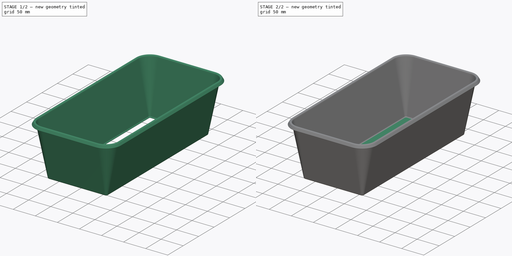
[diagram: build sequence overview — one tinted view per stage of 2, left to right]
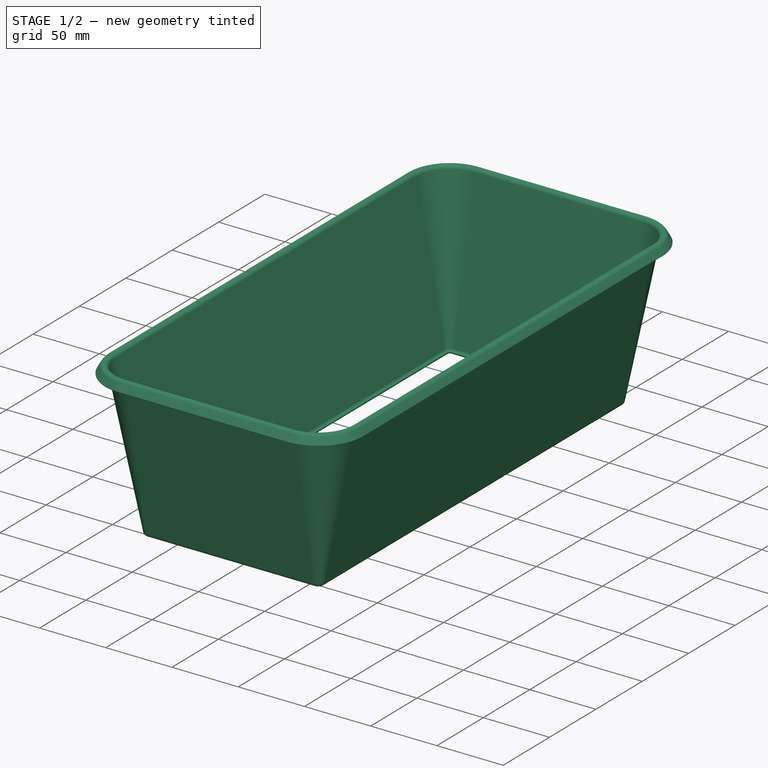
[diagram: stage 1 of 2 — iso view after this stage's code; geometry added in this stage tinted green]
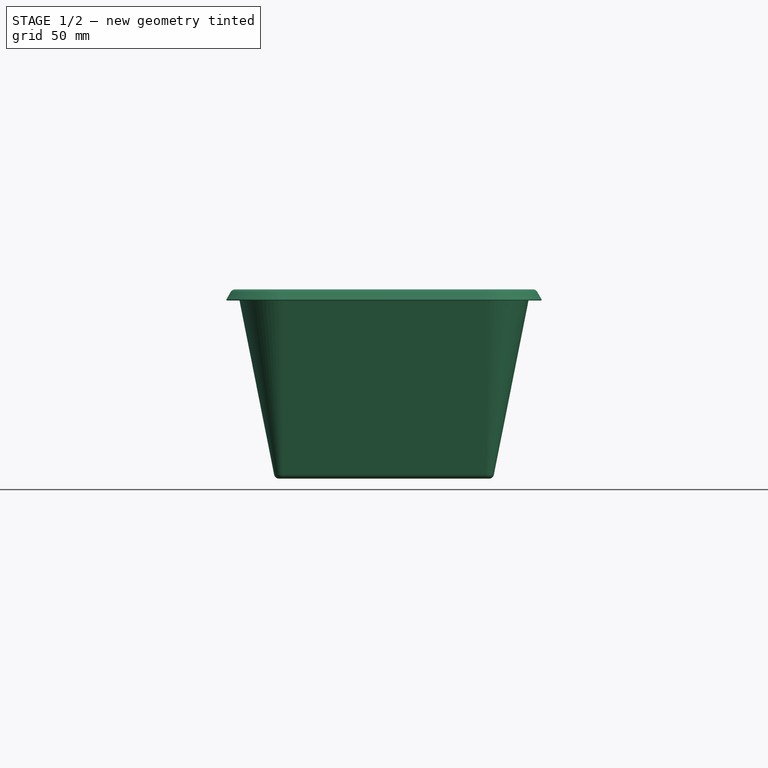
[diagram: stage 1 of 2 — front view after this stage's code; geometry added in this stage tinted green]
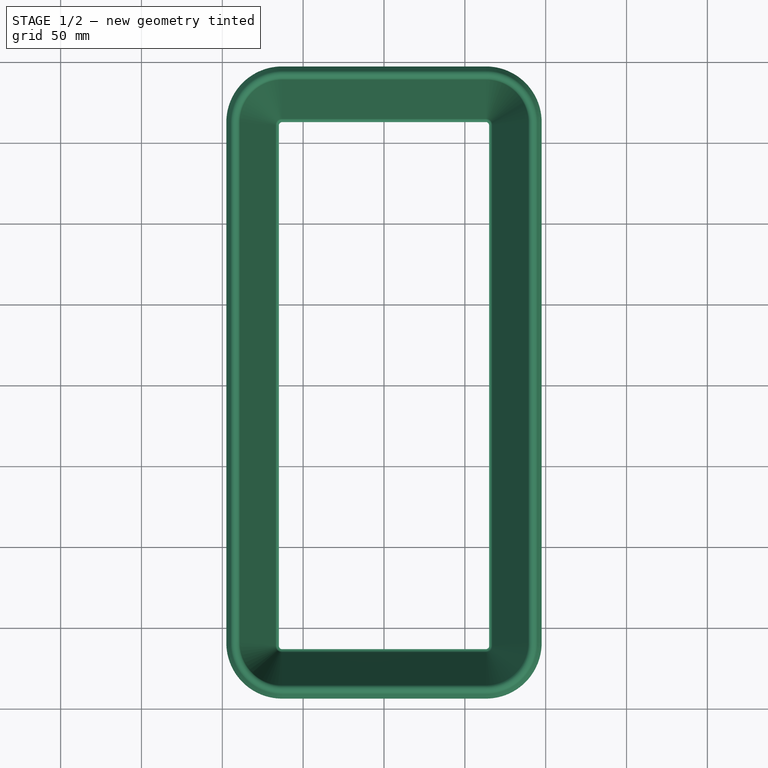
[diagram: stage 1 of 2 — top view after this stage's code; geometry added in this stage tinted green]
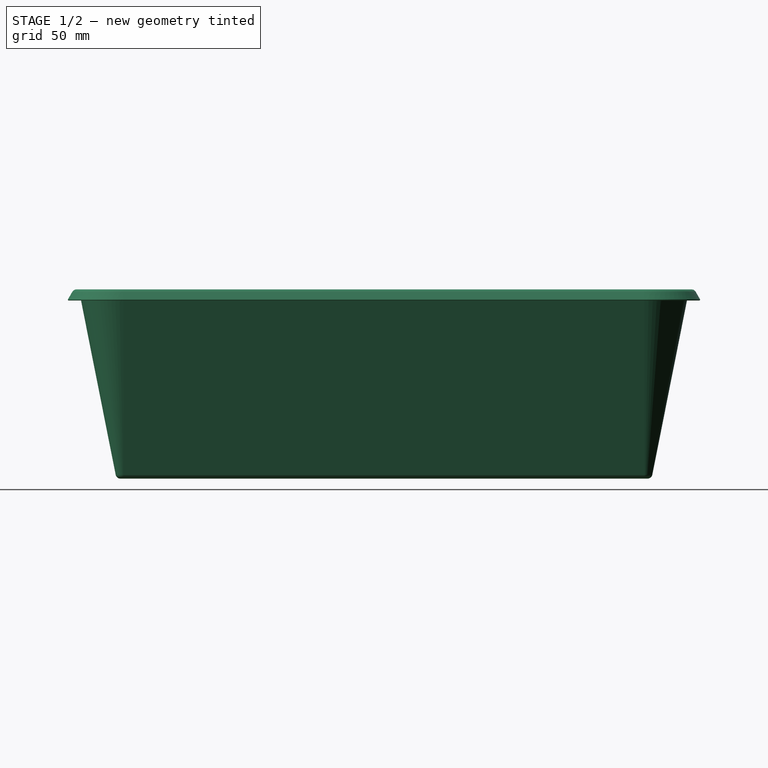
[diagram: stage 1 of 2 — right view after this stage's code; geometry added in this stage tinted green]
FCSTD DOCUMENT  (FreeCAD 0.22R37100 (Git))
Label: basin_2
License: All rights reserved
LicenseURL: http://en.wikipedia.org/wiki/All_rights_reserved
objects: Sketcher::SketchObject×2, PartDesign::AdditivePipe×1, PartDesign::Pad×1, PartDesign::CoordinateSystem×1, PartDesign::Body×1
note: 8 computed .brp shape members not serialized (recipe doc carries the construction recipe); baked Part::Feature solids carry a one-line shape summary decoded from their .brp

FEATURE [Sketcher::SketchObject] Sketch
  AttachmentOffset = pos=(65,0,0) rot=(0,0,1;0rad)
  AttachmentSupport = -> [XZ_Plane]
  FullyConstrained = true
  MapMode = 5
  Placement = pos=(65,0,0) rot=(1,0,0;1.5708rad)
  expr: .AttachmentOffset.Base.x = <<Sketch001>>.Constraints.width / 2
  sketch-geometry (15):
    g0: LineSegment StartX=2.94242 StartY=2.41503 StartZ=0 EndX=25.2037 EndY=114.39 EndZ=0
    g1: LineSegment StartX=24.2229 StartY=114.585 StartZ=0 EndX=1.96161 EndY=2.61002 EndZ=0
    g2: LineSegment StartX=-6e-16 StartY=0 StartZ=0 EndX=-4e-16 EndY=1 EndZ=0
    g3: ArcOfCircle CenterX=0 CenterY=3 CenterZ=0 NormalX=0 NormalY=0 NormalZ=1 AngleXU=0 Radius=2 StartAngle=4.71239 EndAngle=6.08694
    g4: ArcOfCircle CenterX=0 CenterY=3 CenterZ=0 NormalX=0 NormalY=0 NormalZ=1 AngleXU=0 Radius=3 StartAngle=4.71239 EndAngle=6.08694
    g5: ArcOfCircle CenterX=27.1653 CenterY=114 CenterZ=0 NormalX=0 NormalY=0 NormalZ=1 AngleXU=0 Radius=2 StartAngle=0.523599 EndAngle=2.94535
    g6: LineSegment StartX=28.8974 StartY=115 StartZ=0 EndX=31.567 EndY=110.376 EndZ=0
    g7: LineSegment StartX=29.7634 StartY=115.5 StartZ=0 EndX=32.433 EndY=110.876 EndZ=0
    g8: LineSegment StartX=0 StartY=117 StartZ=0 EndX=27.1653 EndY=117 EndZ=0
    g9: LineSegment StartX=27.1653 StartY=117 StartZ=0 EndX=27.1653 EndY=0 EndZ=0
    g10: ArcOfCircle CenterX=27.1653 CenterY=114 CenterZ=0 NormalX=0 NormalY=0 NormalZ=1 AngleXU=0 Radius=3 StartAngle=0.523599 EndAngle=1.5708
    g11: ArcOfCircle CenterX=27.1653 CenterY=114 CenterZ=0 NormalX=0 NormalY=0 NormalZ=1 AngleXU=0 Radius=3 StartAngle=1.5708 EndAngle=2.94535
    g12: LineSegment StartX=32.5 StartY=0 StartZ=0 EndX=32.5 EndY=110.626 EndZ=0
    g13: ArcOfCircle CenterX=32 CenterY=110.626 CenterZ=0 NormalX=0 NormalY=0 NormalZ=1 AngleXU=0 Radius=0.5 StartAngle=3.66519 EndAngle=6.28319
    g14: ArcOfCircle CenterX=32 CenterY=110.626 CenterZ=0 NormalX=0 NormalY=0 NormalZ=1 AngleXU=0 Radius=0.5 StartAngle=-9.8e-15 EndAngle=0.523599
  constraints (39):
    c: Coincident(g-1,g2)
    c: PointOnObject(g2,g-2)
    c: PointOnObject(g3,g-2)
    c: Coincident(g3,g2)
    c: Coincident(g4,g3)
    c: Coincident(g4,g2)
    c: Tangent(g4,g0) = -1.5708
    c: Tangent(g3,g1) = 1.5708
    c: DistanceY(g2,g2) = 1
    c: Parallel(g1,g0)
    c: Coincident(g10,g5)
    c: Tangent(g5,g0) = 1.5708
    c: Tangent(g11,g1) = -1.5708
    c: Tangent(g6,g5) = 1.5708
    c: Tangent(g6,g13) = -1.5708
    c: Tangent(g7,g10) = 1.5708
    c: Tangent(g7,g14) = 1.5708
    c: Parallel(g6,g7)
    c: PointOnObject(g8,g-2)
    c: Horizontal(g8)
    c: Coincident(g8,g9)
    c: PointOnObject(g9,g-1)
    c: Vertical(g9)
    c: DistanceY(g8) = 117
    c: Distance(g8,g13) = 8
    c: Angle(g7) = -1.0472
    c: DistanceX(g8) = 27.1653
    c: Radius(g3) = 2
    c: Coincident(g10,g11)
    c: Coincident(g10,g11)
    c: Radius(g10) = 3
    c: Tangent(g8,g10) = 1.5708
    c: PointOnObject(g10,g9)
    c: PointOnObject(g12,g-1)
    c: Coincident(g13,g14)
    c: Coincident(g13,g14)
    c: Tangent(g12,g13) = -1.5708
    c: Vertical(g12)
    c: DistanceX(g13) = 32.5
FEATURE [Sketcher::SketchObject] Sketch001
  AttachmentSupport = -> [XY_Plane]
  FullyConstrained = true
  MapMode = 5
  sketch-geometry (10):
    g0: LineSegment StartX=-63 StartY=-163 StartZ=0 EndX=63 EndY=-163 EndZ=0
    g1: LineSegment StartX=65 StartY=-161 StartZ=0 EndX=65 EndY=161 EndZ=0
    g2: LineSegment StartX=63 StartY=163 StartZ=0 EndX=-63 EndY=163 EndZ=0
    g3: LineSegment StartX=-65 StartY=161 StartZ=0 EndX=-65 EndY=-161 EndZ=0
    g4: ArcOfCircle CenterX=-63 CenterY=-161 CenterZ=0 NormalX=0 NormalY=0 NormalZ=1 AngleXU=0 Radius=2 StartAngle=3.14159 EndAngle=4.71239
    g5: ArcOfCircle CenterX=63 CenterY=-161 CenterZ=0 NormalX=0 NormalY=0 NormalZ=1 AngleXU=0 Radius=2 StartAngle=4.71239 EndAngle=6.28319
    g6: ArcOfCircle CenterX=63 CenterY=161 CenterZ=0 NormalX=0 NormalY=0 NormalZ=1 AngleXU=0 Radius=2 StartAngle=2.7e-15 EndAngle=1.5708
    g7: ArcOfCircle CenterX=-63 CenterY=161 CenterZ=0 NormalX=0 NormalY=0 NormalZ=1 AngleXU=0 Radius=2 StartAngle=1.5708 EndAngle=3.14159
    g8: GeomPoint X=-65 Y=-163 Z=0
    g9: GeomPoint X=65 Y=163 Z=0
  constraints (23):
    c: Tangent(g0,g4) = -1.5708
    c: Tangent(g0,g5) = -1.5708
    c: Tangent(g1,g5) = -1.5708
    c: Tangent(g1,g6) = -1.5708
    c: Tangent(g2,g6) = -1.5708
    c: Tangent(g2,g7) = -1.5708
    c: Tangent(g3,g7) = -1.5708
    c: Tangent(g3,g4) = -1.5708
    c: Horizontal(g0)
    c: Horizontal(g2)
    c: Vertical(g1)
    c: Vertical(g3)
    c: Equal(g4,g5)
    c: Equal(g5,g6)
    c: Equal(g6,g7)
    c: PointOnObject(g8,g0)
    c: PointOnObject(g8,g3)
    c: PointOnObject(g9,g1)
    c: PointOnObject(g9,g2)
    c: Symmetric(g8,g9,g-1)
    c: DistanceX(g8,g9) = 130  'width'
    c: DistanceY(g8,g9) = 326  'length'
    c: Radius(g6) = 2
FEATURE [PartDesign::AdditivePipe] AdditivePipe
  AuxilleryCurvelinear = true
  AuxillerySpineTangent = false
  Binormal = (0,0,0)
  Mode = 0
  Placement = pos=(0,0,0) rot=(1,0,0;1.5708rad)
  Profile = -> Sketch
  Spine = -> Sketch001
  SpineTangent = false
  Suppressed = false
  Transformation = 0
  Transition = 0
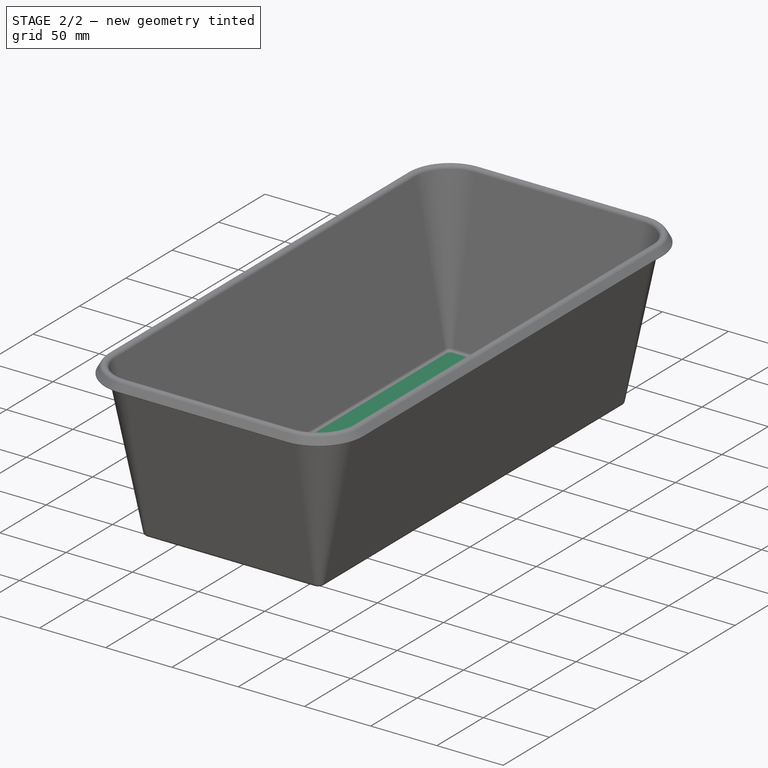
[diagram: stage 2 of 2 — iso view after this stage's code; geometry added in this stage tinted green]
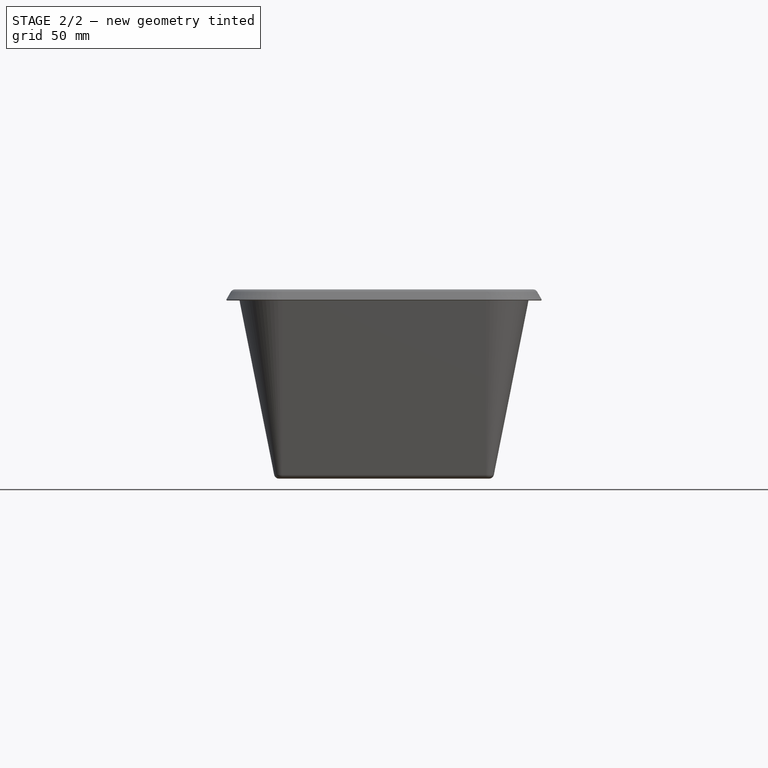
[diagram: stage 2 of 2 — front view after this stage's code; geometry added in this stage tinted green]
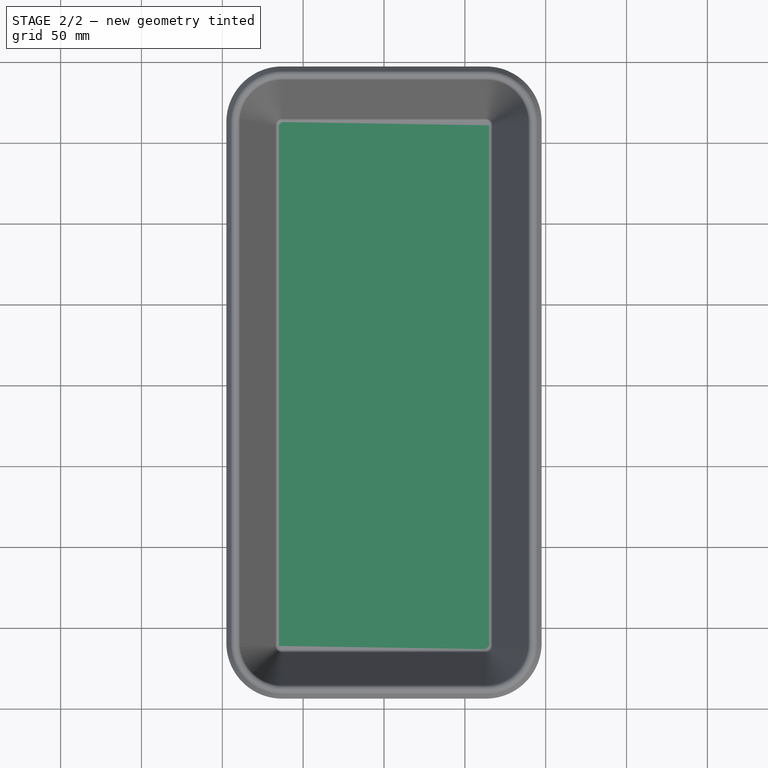
[diagram: stage 2 of 2 — top view after this stage's code; geometry added in this stage tinted green]
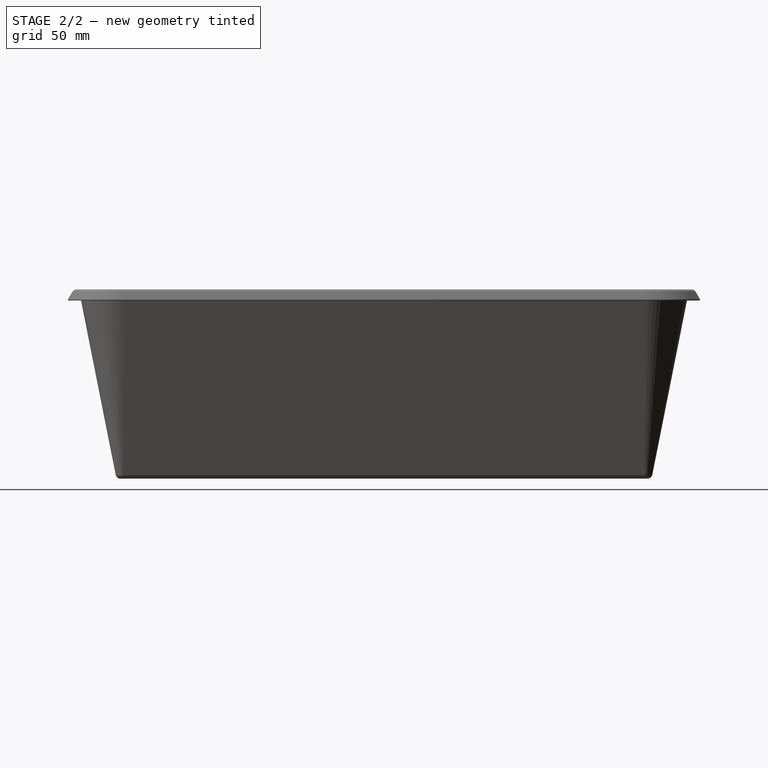
[diagram: stage 2 of 2 — right view after this stage's code; geometry added in this stage tinted green]
FEATURE [PartDesign::Pad] Pad
  BaseFeature = -> AdditivePipe
  Direction = (0,0,1)
  Length = 1
  Length2 = 10
  Placement = pos=(0,0,0) rot=(1,0,0;1.5708rad)
  Profile = -> Sketch001
  ReferenceAxis = -> Sketch001 [N_Axis]
  Suppressed = false
  Type = 0
FEATURE [PartDesign::CoordinateSystem] Local_CS
  AttacherType = Attacher::AttachEngine3D
  AttachmentSupport = -> [XY_Plane]
  MapMode = 5
FEATURE [PartDesign::Body] Body
  Group = -> [Sketch,Sketch001,AdditivePipe,Pad,Local_CS]
  Origin = -> Origin
  Tip = -> Pad
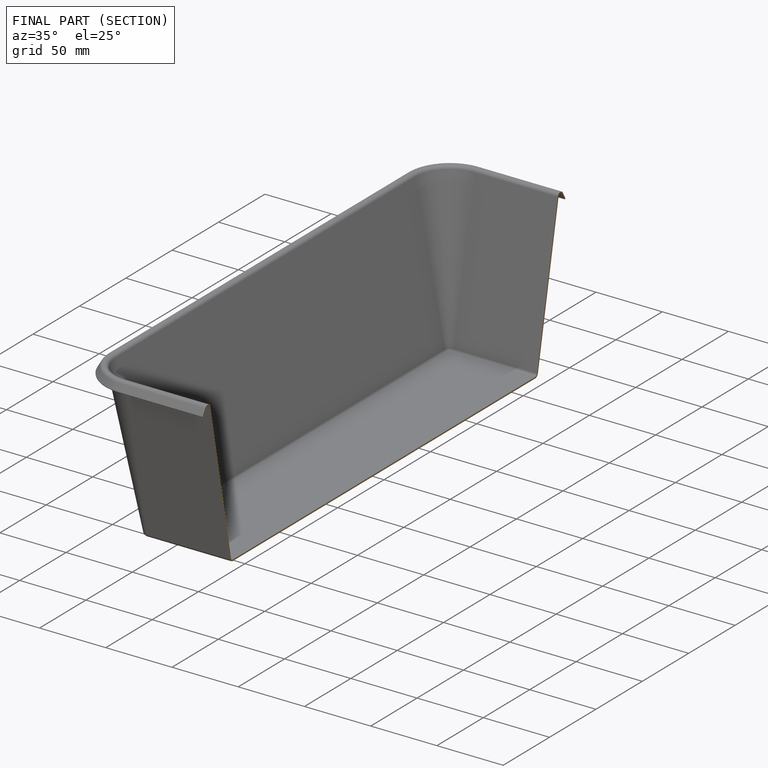
[diagram: finished part — half-section view (interior)]
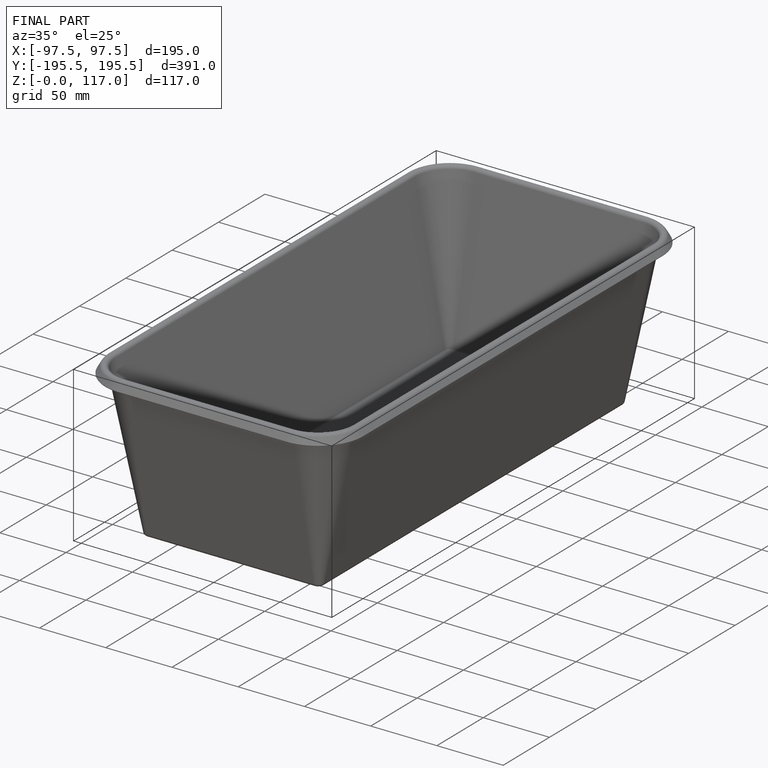
[diagram: finished part — iso view with bounding-box wireframe]
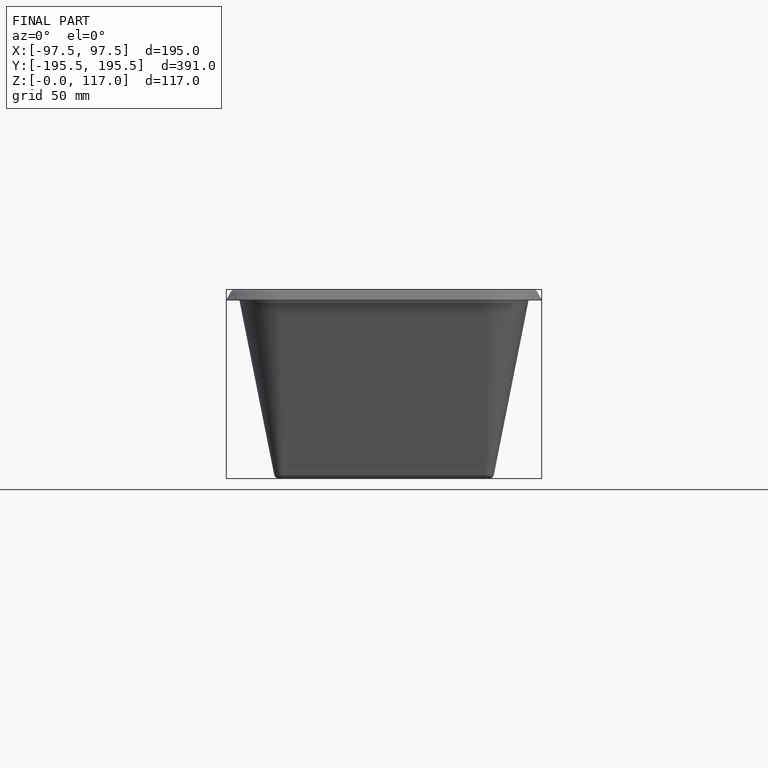
[diagram: finished part — front view with bounding-box wireframe]
